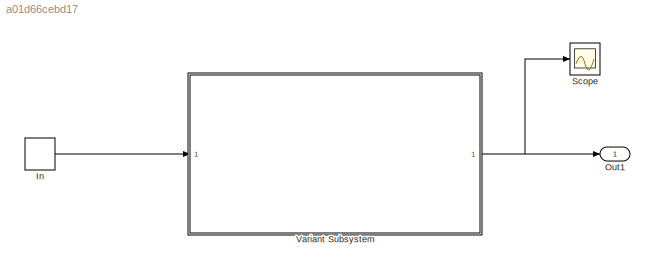
MODEL slx_a01d66cebd17
KIND model
CONFIG AbsTol = auto
CONFIG EnableMultiTasking = off
CONFIG FixedStep = auto
CONFIG MaxStep = auto
CONFIG MinStep = auto
CONFIG RelTol = 1e-3
CONFIG SampleTimeConstraint = Unconstrained
CONFIG Solver = FixedStepAuto
CONFIG SolverName = FixedStepAuto
CONFIG StartTime = 0.0
CONFIG StopTime = 10.0
BLOCK [DiscretePulseGenerator] In
  Period = 10
  Ports = [0, 1]
  PulseWidth = 5
BLOCK [Outport] Out1
  IconDisplay = Port number
BLOCK [Scope] Scope
  NumInputPorts = 1
  Ports = [1]
  ScopeSpecificationString = Simulink.scopes.TimeScopeBlockCfg('CurrentConfiguration', extmgr.ConfigurationSet(extmgr.Configuration('Core','General UI',true),extmgr.Configuration('Core','Source UI',true),extmgr.Configuration('Sources','WiredSimulink',true),extmgr.Configuration('Visuals','Time Domain',true,'SerializedDisplays',{struct('MinYLimReal','-650.00000','MaxYLimReal','5850.00000','YLabelReal','','MinYLimMag',' 0.00000'...<+1382ch>
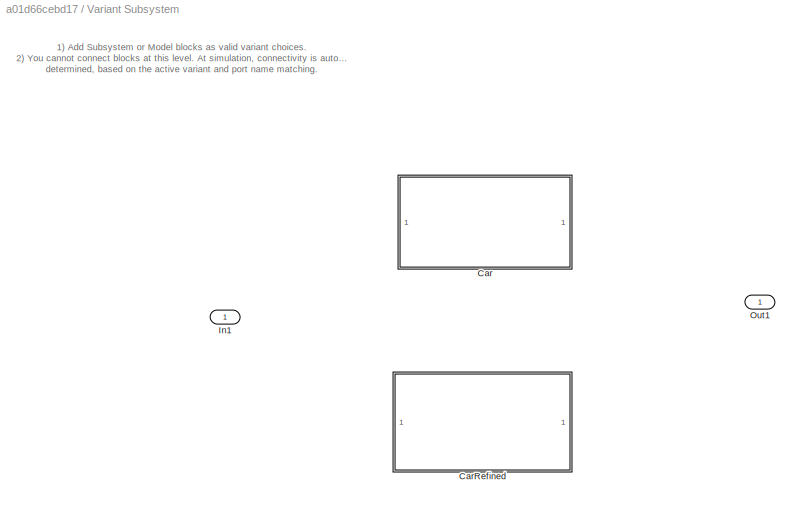
BLOCK [SubSystem] Variant Subsystem
  Ports = [1, 1]
  RequestExecContextInheritance = off
  Variant = on
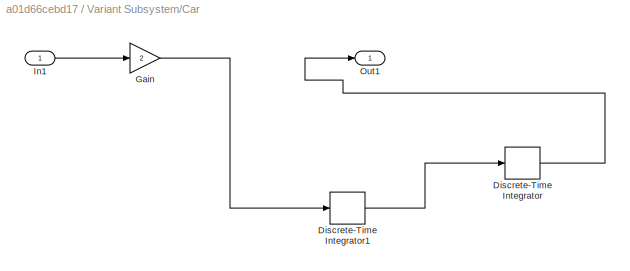
BLOCK [SubSystem] Variant Subsystem/Car
  Ports = [1, 1]
  RequestExecContextInheritance = off
  Variant = off
  VariantControl = VSS_CAR
BLOCK [DiscreteIntegrator] Variant Subsystem/Car/Discrete-Time Integrator
  ICPrevOutput = DiscIntNeverNeededParam
  ICPrevScaledInput = DiscIntNeverNeededParam
  InitialConditionSetting = State (most efficient)
  Ports = [1, 1]
  SampleTime = -1
BLOCK [DiscreteIntegrator] Variant Subsystem/Car/Discrete-Time Integrator1
  ICPrevOutput = DiscIntNeverNeededParam
  ICPrevScaledInput = DiscIntNeverNeededParam
  InitialConditionSetting = State (most efficient)
  Ports = [1, 1]
  SampleTime = -1
BLOCK [Gain] Variant Subsystem/Car/Gain
  Gain = 2
  OutDataTypeStr = Inherit: Inherit via internal rule
  ParamDataTypeStr = Inherit: Inherit via internal rule
  SaturateOnIntegerOverflow = off
BLOCK [Inport] Variant Subsystem/Car/In1
  IconDisplay = Port number
BLOCK [Outport] Variant Subsystem/Car/Out1
  IconDisplay = Port number
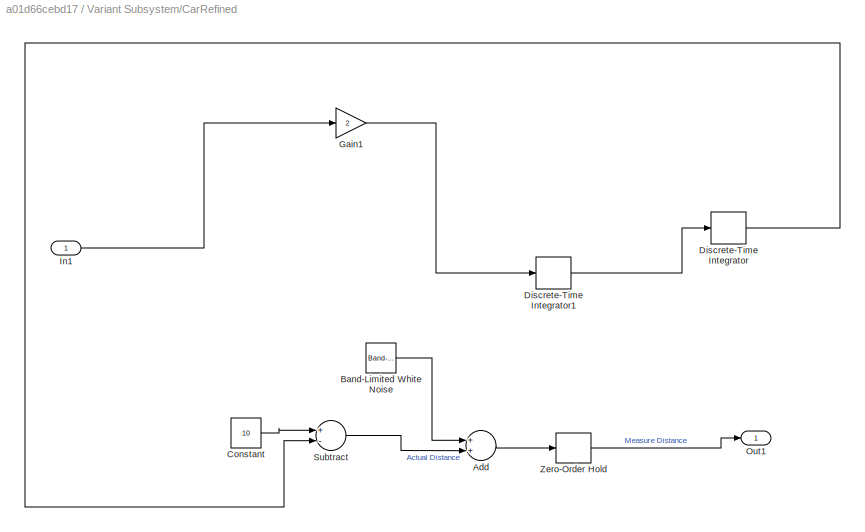
BLOCK [SubSystem] Variant Subsystem/CarRefined
  Ports = [1, 1]
  RequestExecContextInheritance = off
  Variant = off
  VariantControl = VSS_CAR_REFINED
BLOCK [Sum] Variant Subsystem/CarRefined/Add
  InputSameDT = off
  OutDataTypeStr = Inherit: Inherit via internal rule
  Ports = [2, 1]
  SaturateOnIntegerOverflow = off
BLOCK [Reference] Variant Subsystem/CarRefined/Band-Limited White Noise  REF=simulink/Sources/Band-Limited
White Noise
  Ports = [0, 1]
  SourceBlock = simulink/Sources/Band-Limited\nWhite Noise
  SourceProductBaseCode = SL
  SourceProductName = Simulink
  SourceType = Band-Limited White Noise.
BLOCK [Constant] Variant Subsystem/CarRefined/Constant
  Value = 10
BLOCK [DiscreteIntegrator] Variant Subsystem/CarRefined/Discrete-Time Integrator
  ICPrevOutput = DiscIntNeverNeededParam
  ICPrevScaledInput = DiscIntNeverNeededParam
  InitialConditionSetting = State (most efficient)
  Ports = [1, 1]
  SampleTime = -1
BLOCK [DiscreteIntegrator] Variant Subsystem/CarRefined/Discrete-Time Integrator1
  ICPrevOutput = DiscIntNeverNeededParam
  ICPrevScaledInput = DiscIntNeverNeededParam
  InitialConditionSetting = State (most efficient)
  Ports = [1, 1]
  SampleTime = -1
BLOCK [Gain] Variant Subsystem/CarRefined/Gain1
  Gain = 2
  OutDataTypeStr = Inherit: Inherit via internal rule
  ParamDataTypeStr = Inherit: Inherit via internal rule
  SaturateOnIntegerOverflow = off
BLOCK [Inport] Variant Subsystem/CarRefined/In1
  IconDisplay = Port number
BLOCK [Outport] Variant Subsystem/CarRefined/Out1
  IconDisplay = Port number
BLOCK [Sum] Variant Subsystem/CarRefined/Subtract
  InputSameDT = off
  Inputs = +-
  OutDataTypeStr = Inherit: Inherit via internal rule
  Ports = [2, 1]
  SaturateOnIntegerOverflow = off
BLOCK [ZeroOrderHold] Variant Subsystem/CarRefined/Zero-Order Hold
  SampleTime = 0.1
BLOCK [Inport] Variant Subsystem/In1
  IconDisplay = Port number
BLOCK [Outport] Variant Subsystem/Out1
  IconDisplay = Port number
ANNOTATION Variant Subsystem: 1) Add Subsystem or Model blocks as valid variant choices. 2) You cannot connect blocks at this level. At simulation, connectivity is automatically determined, based on the active variant and port name matching.
LINE In:1 -> Variant Subsystem:1
LINE Variant Subsystem/Car/Discrete-Time Integrator1:1 -> Variant Subsystem/Car/Discrete-Time Integrator:1
LINE Variant Subsystem/Car/Discrete-Time Integrator:1 -> Variant Subsystem/Car/Out1:1
LINE Variant Subsystem/Car/Gain:1 -> Variant Subsystem/Car/Discrete-Time Integrator1:1
LINE Variant Subsystem/Car/In1:1 -> Variant Subsystem/Car/Gain:1
LINE Variant Subsystem/CarRefined/Add:1 -> Variant Subsystem/CarRefined/Zero-Order Hold:1
LINE Variant Subsystem/CarRefined/Band-Limited White Noise:1 -> Variant Subsystem/CarRefined/Add:1
LINE Variant Subsystem/CarRefined/Constant:1 -> Variant Subsystem/CarRefined/Subtract:1
LINE Variant Subsystem/CarRefined/Discrete-Time Integrator1:1 -> Variant Subsystem/CarRefined/Discrete-Time Integrator:1
LINE Variant Subsystem/CarRefined/Discrete-Time Integrator:1 -> Variant Subsystem/CarRefined/Subtract:2
LINE Variant Subsystem/CarRefined/Gain1:1 -> Variant Subsystem/CarRefined/Discrete-Time Integrator1:1
LINE Variant Subsystem/CarRefined/In1:1 -> Variant Subsystem/CarRefined/Gain1:1
LINE Variant Subsystem/CarRefined/Subtract:1 -> Variant Subsystem/CarRefined/Add:2
LINE Variant Subsystem/CarRefined/Zero-Order Hold:1 -> Variant Subsystem/CarRefined/Out1:1
NET Variant Subsystem:1 -> Out1:1, Scope:1
note: NET lines group one-source signal fan-out (src -> all destinations, sorted); 1:1 wires keep LINE
